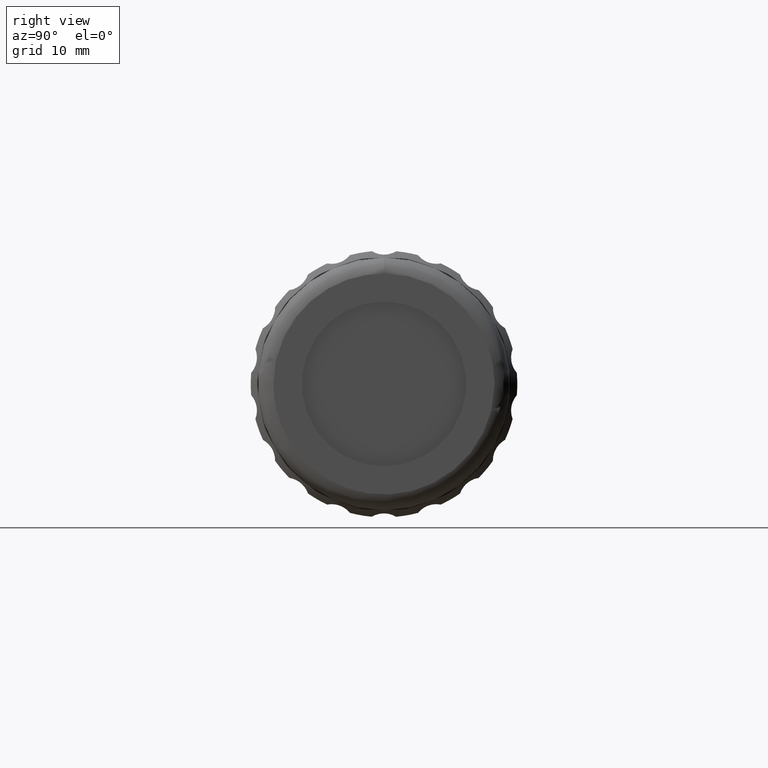
[diagram: clean part render]
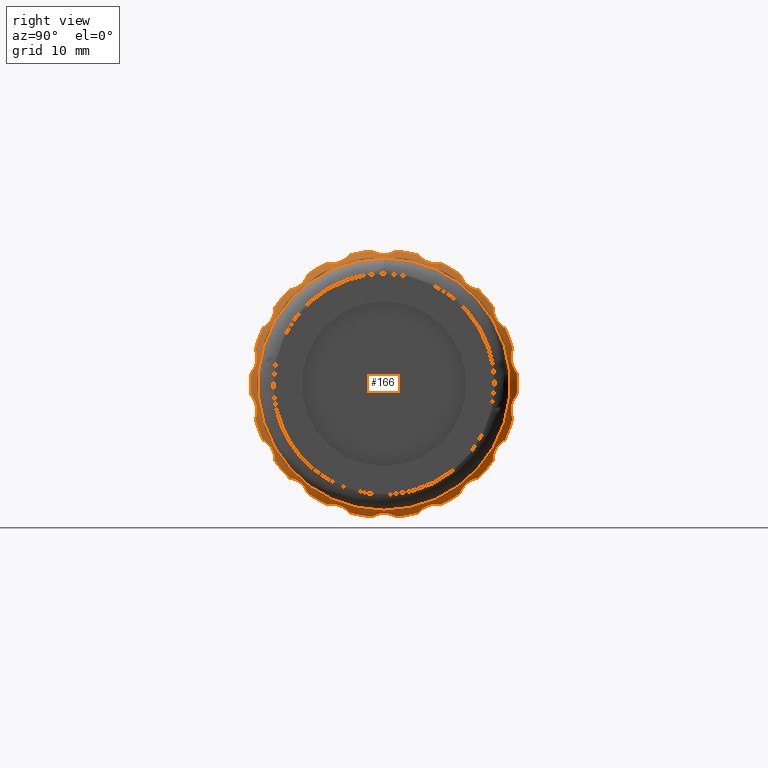
[diagram: same view with one face highlighted and labeled with its STEP entity id]
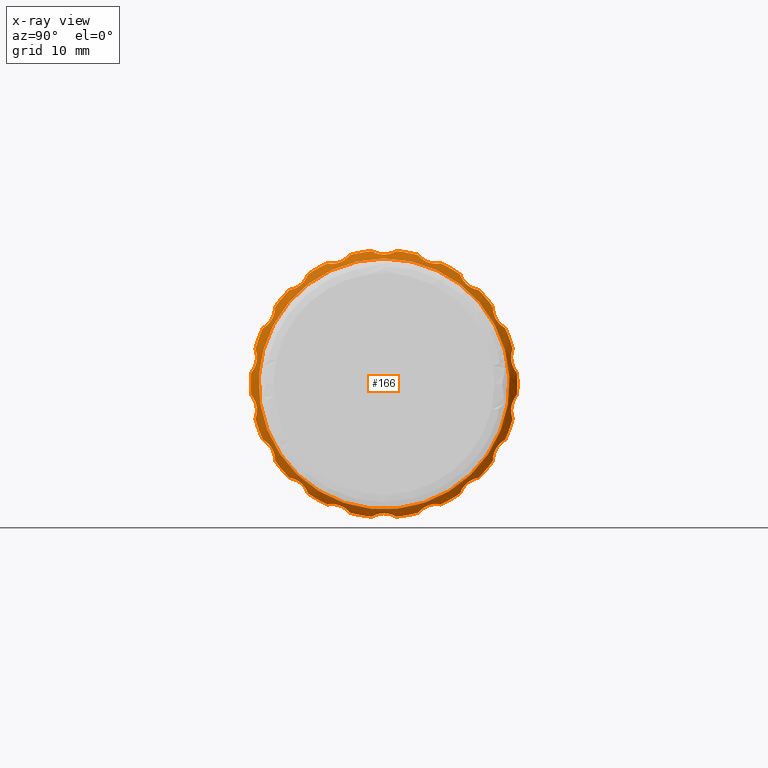
[diagram: x-ray of the same camera — body ghosted, the highlighted face saturated]
A machine part, right view. The second image highlights one B-rep face of the part: STEP entity #166.
The next image is the same camera in x-ray: the body ghosted, the highlighted face saturated — about 11% of this face is hidden behind the body in this view.
In plain terms, the highlighted conical surface has half-angle 45 deg.
Its self-contained STEP definition (entity closure, byte-faithful):
#9 = CARTESIAN_POINT ( 'NONE',  ( 32.44685803487879383, 61.45570754086768517, -7.125210880294358340 ) ) ;
#12 = CARTESIAN_POINT ( 'NONE',  ( 32.44685803487877962, 29.61726367720591568, 4.463034991433923793 ) ) ;
#18 = CARTESIAN_POINT ( 'NONE',  ( 32.59371544402085163, 50.51385775461107386, -16.24445744886877918 ) ) ;
#21 = AXIS2_PLACEMENT_3D ( 'NONE', #2043, #247, #915 ) ;
#22 = CARTESIAN_POINT ( 'NONE',  ( 32.85210940846928196, 60.02841235131358388, -8.899086528648503247 ) ) ;
#27 = CARTESIAN_POINT ( 'NONE',  ( 32.71993598786254864, 59.93088999195953903, 9.293558664531927249 ) ) ;
#28 = VERTEX_POINT ( 'NONE', #556 ) ;
#40 = AXIS2_PLACEMENT_3D ( 'NONE', #1572, #1765, #341 ) ;
#44 = CARTESIAN_POINT ( 'NONE',  ( 32.85273454226017975, 62.47058842444242543, -2.188910012077419420 ) ) ;
#45 = CARTESIAN_POINT ( 'NONE',  ( 32.93404516599888865, 35.18529463847772121, -12.46115531925905806 ) ) ;
#51 = CARTESIAN_POINT ( 'NONE',  ( 32.44685803487877251, 62.96184413496547450, 1.416514203673303385 ) ) ;
#55 = DIRECTION ( 'NONE',  ( 1.000000000000000000, -0.000000000000000000, -0.000000000000000000 ) ) ;
#58 = CIRCLE ( 'NONE', #597, 17.00000000000001421 ) ;
#63 = CARTESIAN_POINT ( 'NONE',  ( 32.59371544402078058, 62.79881279935864313, 1.603818139432604095 ) ) ;
#67 = DIRECTION ( 'NONE',  ( 1.000000000000000000, -0.000000000000000000, -0.000000000000000000 ) ) ;
#73 = EDGE_CURVE ( 'NONE', #1799, #1737, #409, .T. ) ;
#82 = CARTESIAN_POINT ( 'NONE',  ( 32.85273454226017975, 62.22720588179112156, 3.569201001427911191 ) ) ;
#83 = CARTESIAN_POINT ( 'NONE',  ( 32.44685803487880094, 46.02096199999999726, 0.000000000000000000 ) ) ;
#87 = CARTESIAN_POINT ( 'NONE',  ( 32.93501117040976567, 29.81087088656429884, -3.145384777659983033 ) ) ;
#88 = CARTESIAN_POINT ( 'NONE',  ( 32.71832649179927444, 39.27997936338324791, -15.31240733331347137 ) ) ;
#90 = DIRECTION ( 'NONE',  ( -1.000000000000000000, 0.000000000000000000, 2.040851148208006519E-16 ) ) ;
#95 = CARTESIAN_POINT ( 'NONE',  ( 32.44685803487879383, 55.71814035268526766, -13.96297718956138922 ) ) ;
#98 = CARTESIAN_POINT ( 'NONE',  ( 32.71832649179926733, 36.13051957456375618, 13.49406587643664324 ) ) ;
#104 = CARTESIAN_POINT ( 'NONE',  ( 32.44685803487880094, 32.13297559991000441, -9.804276299192871136 ) ) ;
#107 = CARTESIAN_POINT ( 'NONE',  ( 32.44685803487878673, 55.71814035268528187, 13.96297718956140166 ) ) ;
#113 = CARTESIAN_POINT ( 'NONE',  ( 32.93501117040977988, 56.84999067884827895, -12.46565831306566352 ) ) ;
#117 = CARTESIAN_POINT ( 'NONE',  ( 32.44685803487879383, 36.32378364731472686, -13.96297718956140699 ) ) ;
#119 = CARTESIAN_POINT ( 'NONE',  ( 32.85210940846934591, 46.72407182862872332, 16.58035111081103352 ) ) ;
#120 = FACE_OUTER_BOUND ( 'NONE', #1086, .T. ) ;
#125 = DIRECTION ( 'NONE',  ( 0.000000000000000000, 1.000000000000000000, 1.065814103640150437E-14 ) ) ;
#126 = CARTESIAN_POINT ( 'NONE',  ( 32.94700126034476284, 56.51882825756361228, 12.73030636577400720 ) ) ;
#132 = ORIENTED_EDGE ( 'NONE', *, *, #1691, .T. ) ;
#133 = VERTEX_POINT ( 'NONE', #1578 ) ;
#138 = B_SPLINE_CURVE_WITH_KNOTS ( 'NONE', 3,
 ( #173, #494, #148, #1757, #331, #2076, #507, #619, #1146, #663, #1158, #296, #1778, #963 ),
 .UNSPECIFIED., .F., .F.,
 ( 4, 2, 2, 2, 2, 2, 4 ),
 ( 1.699674944388147786E-17, 0.0008570537395406005064, 0.001285580609310882491, 0.001714107479081164800, 0.002142634348851446893, 0.002571161218621729420, 0.003428214958162306616 ),
 .UNSPECIFIED. ) ;
#140 = VERTEX_POINT ( 'NONE', #1590 ) ;
#143 = CARTESIAN_POINT ( 'NONE',  ( 32.71993598786259838, 41.33912331703049858, -16.06040833662843070 ) ) ;
#148 = CARTESIAN_POINT ( 'NONE',  ( 32.71832649179925312, 44.92366211032619816, -16.69450802511422438 ) ) ;
#149 = ORIENTED_EDGE ( 'NONE', *, *, #762, .T. ) ;
#150 = CARTESIAN_POINT ( 'NONE',  ( 32.93501117040983672, 31.86424395090698525, -8.499872551038858859 ) ) ;
#151 = DIRECTION ( 'NONE',  ( 0.000000000000000000, 1.000000000000000000, -3.552713678800500929E-15 ) ) ;
#153 = CARTESIAN_POINT ( 'NONE',  ( 32.44685803487878673, 38.77725821771978332, 15.37949139323467307 ) ) ;
#154 = ORIENTED_EDGE ( 'NONE', *, *, #1845, .T. ) ;
#164 = CARTESIAN_POINT ( 'NONE',  ( 32.85273454226020107, 35.90049711072168748, -13.15133936029217665 ) ) ;
#166 = ADVANCED_FACE ( 'NONE', ( #120, #1548 ), #973, .T. ) ;
#173 = CARTESIAN_POINT ( 'NONE',  ( 32.44685803487877251, 44.47420285922230221, -16.92948717948720727 ) ) ;
#175 = CARTESIAN_POINT ( 'NONE',  ( 32.44685803487878673, 33.95401115804229875, -11.97450196783888821 ) ) ;
#184 = CARTESIAN_POINT ( 'NONE',  ( 32.44685803487877962, 62.42466032279407528, -4.463034991433911358 ) ) ;
#190 = CARTESIAN_POINT ( 'NONE',  ( 32.71832649179925312, 61.02747999826900127, 7.396964432529774314 ) ) ;
#196 = CARTESIAN_POINT ( 'NONE',  ( 32.94700126034472731, 60.38080175225200463, -8.127785578975545988 ) ) ;
#198 = CARTESIAN_POINT ( 'NONE',  ( 32.44685803487877251, 29.08007986503451647, -1.416514203673299832 ) ) ;
#200 = VERTEX_POINT ( 'NONE', #2038 ) ;
#202 = CARTESIAN_POINT ( 'NONE',  ( 32.44685803487877962, 33.95401115804232006, 11.97450196783887932 ) ) ;
#203 = EDGE_CURVE ( 'NONE', #1030, #1658, #1355, .T. ) ;
#204 = CARTESIAN_POINT ( 'NONE',  ( 32.44685803487879383, 47.56772114077768521, 16.92948717948718240 ) ) ;
#210 = CARTESIAN_POINT ( 'NONE',  ( 32.71832649179923180, 62.65238706205303032, 1.818341456876850781 ) ) ;
#213 = ORIENTED_EDGE ( 'NONE', *, *, #229, .T. ) ;
#223 = ORIENTED_EDGE ( 'NONE', *, *, #1145, .T. ) ;
#226 = DIRECTION ( 'NONE',  ( 1.000000000000000000, -0.000000000000000000, -0.000000000000000000 ) ) ;
#229 = EDGE_CURVE ( 'NONE', #684, #958, #1998, .T. ) ;
#237 = CARTESIAN_POINT ( 'NONE',  ( 32.71832649179921759, 29.38953693794697131, -1.818341456876848783 ) ) ;
#244 = DIRECTION ( 'NONE',  ( 0.000000000000000000, 0.000000000000000000, 1.000000000000000000 ) ) ;
#247 = DIRECTION ( 'NONE',  ( 1.000000000000000000, -0.000000000000000000, -0.000000000000000000 ) ) ;
#250 = CARTESIAN_POINT ( 'NONE',  ( 32.94671223884984101, 35.52685220674476341, 12.73377765964755071 ) ) ;
#256 = CARTESIAN_POINT ( 'NONE',  ( 32.44685803487880804, 29.61726367720594766, -4.463034991433898035 ) ) ;
#257 = CARTESIAN_POINT ( 'NONE',  ( 32.44685803487879383, 53.26466578228019699, 15.37949139323468017 ) ) ;
#260 = DIRECTION ( 'NONE',  ( 0.000000000000000000, 1.000000000000000000, 6.217248937900876626E-15 ) ) ;
#261 = CIRCLE ( 'NONE', #812, 17.00000000000000000 ) ;
#262 = B_SPLINE_CURVE_WITH_KNOTS ( 'NONE', 3,
 ( #175, #830, #690, #1669, #1314, #45, #1351, #356, #1817, #1997, #164, #820, #1969, #1459 ),
 .UNSPECIFIED., .F., .F.,
 ( 4, 2, 2, 2, 2, 2, 4 ),
 ( 1.636534854170084423E-17, 0.0008570537395405636435, 0.001285580609310837171, 0.001714107479081110807, 0.002142634348851384877, 0.002571161218621658296, 0.003428214958162212507 ),
 .UNSPECIFIED. ) ;
#266 = DIRECTION ( 'NONE',  ( 1.000000000000000000, -0.000000000000000000, -0.000000000000000000 ) ) ;
#268 = CARTESIAN_POINT ( 'NONE',  ( 32.71832649179926022, 47.11826188967381768, 16.69450802511423149 ) ) ;
#271 = ORIENTED_EDGE ( 'NONE', *, *, #1607, .T. ) ;
#273 = EDGE_LOOP ( 'NONE', ( #1616 ) ) ;
#280 = CARTESIAN_POINT ( 'NONE',  ( 32.88671825240743374, 46.58915913714510282, 16.55096588861032814 ) ) ;
#282 = CARTESIAN_POINT ( 'NONE',  ( 32.93404516599894549, 40.10073146738320560, -15.41567220399188543 ) ) ;
#285 = CARTESIAN_POINT ( 'NONE',  ( 32.44685803487877962, 58.08791284195767446, -11.97450196783888110 ) ) ;
#286 = CARTESIAN_POINT ( 'NONE',  ( 32.44685803487881515, 46.02096199999999726, 0.000000000000000000 ) ) ;
#290 = EDGE_CURVE ( 'NONE', #28, #1155, #58, .T. ) ;
#291 = CARTESIAN_POINT ( 'NONE',  ( 32.88806413580810073, 39.83200033124971640, 15.35935614810683880 ) ) ;
#296 = CARTESIAN_POINT ( 'NONE',  ( 32.71993598786257706, 47.11445589906591636, -16.69313033811515012 ) ) ;
#315 = CARTESIAN_POINT ( 'NONE',  ( 32.85273454226022949, 52.35012353516404460, -15.34024937236954855 ) ) ;
#317 = CARTESIAN_POINT ( 'NONE',  ( 32.59397570363891816, 55.79897765731979575, 13.72771975950780821 ) ) ;
#319 = CARTESIAN_POINT ( 'NONE',  ( 32.44685803487880804, 30.58621645913232001, -7.125210880294336135 ) ) ;
#331 = CARTESIAN_POINT ( 'NONE',  ( 32.88671825240744084, 45.45276486285489881, -16.55096588861032814 ) ) ;
#333 = DIRECTION ( 'NONE',  ( 1.000000000000000000, -0.000000000000000000, -0.000000000000000000 ) ) ;
#337 = CARTESIAN_POINT ( 'NONE',  ( 32.93501117040975146, 60.17768004909310520, 8.499872551038848201 ) ) ;
#341 = DIRECTION ( 'NONE',  ( 0.000000000000000000, 1.000000000000000000, -1.154631945610162960E-14 ) ) ;
#345 = ORIENTED_EDGE ( 'NONE', *, *, #1541, .T. ) ;
#347 = CARTESIAN_POINT ( 'NONE',  ( 32.85210940846931038, 29.81459741884976111, 3.571575765922793355 ) ) ;
#349 = CARTESIAN_POINT ( 'NONE',  ( 32.71832649179923180, 32.11174389140475682, 9.297543592584467831 ) ) ;
#354 = CARTESIAN_POINT ( 'NONE',  ( 32.88671825240739821, 62.22181512952325022, -3.433610011084526459 ) ) ;
#356 = CARTESIAN_POINT ( 'NONE',  ( 32.94700126034473442, 35.52309574243637513, -12.73030636577401431 ) ) ;
#359 = CARTESIAN_POINT ( 'NONE',  ( 32.44685803487879383, 59.90894840009004696, 9.804276299192796529 ) ) ;
#361 = VERTEX_POINT ( 'NONE', #198 ) ;
#365 = CARTESIAN_POINT ( 'NONE',  ( 32.44685803487880094, 32.13297559991000441, -9.804276299192871136 ) ) ;
#369 = B_SPLINE_CURVE_WITH_KNOTS ( 'NONE', 3,
 ( #1988, #977, #1482, #22, #1002, #1338, #1182, #196, #1326, #1804, #1304, #520, #1148, #1025 ),
 .UNSPECIFIED., .F., .F.,
 ( 4, 2, 2, 2, 2, 2, 4 ),
 ( 2.194270917860438266E-17, 0.0008570537395405623425, 0.001285580609310835003, 0.001714107479081107555, 0.002142634348851380106, 0.002571161218621652658, 0.003428214958162185619 ),
 .UNSPECIFIED. ) ;
#372 = CARTESIAN_POINT ( 'NONE',  ( 32.44685803487879383, 30.58621645913232356, 7.125210880294359228 ) ) ;
#377 = CARTESIAN_POINT ( 'NONE',  ( 32.44685803487877251, 62.96184413496547450, -1.416514203673302941 ) ) ;
#382 = CARTESIAN_POINT ( 'NONE',  ( 32.88806413580808652, 34.95203119838304673, 12.31632407541566465 ) ) ;
#383 = CARTESIAN_POINT ( 'NONE',  ( 32.59397570363886132, 62.33536472968091147, 4.230856126619375601 ) ) ;
#391 = CARTESIAN_POINT ( 'NONE',  ( 32.59371544402083742, 36.24308934852178510, 13.72813594343332078 ) ) ;
#393 = ORIENTED_EDGE ( 'NONE', *, *, #1915, .T. ) ;
#398 = CIRCLE ( 'NONE', #1928, 17.00000000000000000 ) ;
#409 = B_SPLINE_CURVE_WITH_KNOTS ( 'NONE', 3,
 ( #51, #63, #210, #715, #2004, #1357, #1069, #1538, #536, #1993, #82, #1832, #383, #1714 ),
 .UNSPECIFIED., .F., .F.,
 ( 4, 2, 2, 2, 2, 2, 4 ),
 ( 3.903127820947815962E-18, 0.0008570537395405356711, 0.001285580609310801392, 0.001714107479081067439, 0.002142634348851333269, 0.002571161218621598882, 0.003428214958162131842 ),
 .UNSPECIFIED. ) ;
#411 = CARTESIAN_POINT ( 'NONE',  ( 32.44685803487876541, 41.68421451916363196, 16.43753695927285818 ) ) ;
#414 = CARTESIAN_POINT ( 'NONE',  ( 32.94700126034476284, 35.30699293778219783, 12.54897458209229022 ) ) ;
#417 = DIRECTION ( 'NONE',  ( 0.000000000000000000, 0.000000000000000000, 1.000000000000000000 ) ) ;
#420 = CARTESIAN_POINT ( 'NONE',  ( 32.44685803487879383, 30.58621645913232356, 7.125210880294359228 ) ) ;
#421 = CARTESIAN_POINT ( 'NONE',  ( 32.88671825240745505, 52.21565638232765849, 15.35848564612278899 ) ) ;
#428 = CARTESIAN_POINT ( 'NONE',  ( 32.94671223884982680, 56.51507179325524532, -12.73377765964754893 ) ) ;
#429 = DIRECTION ( 'NONE',  ( 0.000000000000000000, 1.000000000000000000, 0.000000000000000000 ) ) ;
#434 = DIRECTION ( 'NONE',  ( 0.000000000000000000, 1.000000000000000000, -7.105427357601001859E-15 ) ) ;
#435 = AXIS2_PLACEMENT_3D ( 'NONE', #561, #1996, #1209 ) ;
#443 = CARTESIAN_POINT ( 'NONE',  ( 32.93404516599894549, 31.57679921079044405, -8.003639195957664043 ) ) ;
#445 = CARTESIAN_POINT ( 'NONE',  ( 32.71993598786257706, 39.28402702137709923, 15.31241445645988897 ) ) ;
#446 = B_SPLINE_CURVE_WITH_KNOTS ( 'NONE', 3,
 ( #184, #688, #1170, #1814, #354, #1011, #1502, #1657, #1336, #1986, #44, #540, #1837, #377 ),
 .UNSPECIFIED., .F., .F.,
 ( 4, 2, 2, 2, 2, 2, 4 ),
 ( 6.071532165918824830E-18, 0.0008570537395405441279, 0.001285580609310812668, 0.001714107479081081534, 0.002142634348851350182, 0.002571161218621618831, 0.003428214958162156129 ),
 .UNSPECIFIED. ) ;
#448 = CARTESIAN_POINT ( 'NONE',  ( 32.88806413580807941, 57.08989280161696911, -12.31632407541566110 ) ) ;
#455 = CARTESIAN_POINT ( 'NONE',  ( 32.93404516599889575, 40.64711861377920599, 15.61454086166572175 ) ) ;
#461 = CARTESIAN_POINT ( 'NONE',  ( 32.44685803487875120, 59.90894840009008959, -9.804276299192858701 ) ) ;
#465 = CARTESIAN_POINT ( 'NONE',  ( 32.88671825240743374, 40.89412893152615425, 15.74715537869002624 ) ) ;
#488 = CARTESIAN_POINT ( 'NONE',  ( 32.85210940846931038, 32.01351164868641774, 8.899086528648499694 ) ) ;
#492 = ORIENTED_EDGE ( 'NONE', *, *, #1944, .T. ) ;
#494 = CARTESIAN_POINT ( 'NONE',  ( 32.59371544402080190, 44.68697132165852537, -16.80145764331209435 ) ) ;
#500 = EDGE_CURVE ( 'NONE', #1178, #970, #767, .T. ) ;
#507 = CARTESIAN_POINT ( 'NONE',  ( 32.94671223884985523, 45.87480198847892865, -16.50012336588022066 ) ) ;
#508 = VERTEX_POINT ( 'NONE', #1474 ) ;
#512 = CARTESIAN_POINT ( 'NONE',  ( 32.94700126034472021, 60.23975066403164647, 8.372093230236089312 ) ) ;
#518 = CARTESIAN_POINT ( 'NONE',  ( 32.44685803487878673, 46.02096199999999726, 0.000000000000000000 ) ) ;
#519 = ORIENTED_EDGE ( 'NONE', *, *, #1536, .T. ) ;
#520 = CARTESIAN_POINT ( 'NONE',  ( 32.71993598786254154, 61.02438389102538707, -7.399571673583226428 ) ) ;
#521 = CARTESIAN_POINT ( 'NONE',  ( 32.93404516599887444, 29.81145125225690151, 3.153385542406650810 ) ) ;
#522 = EDGE_CURVE ( 'NONE', #958, #1634, #1462, .T. ) ;
#529 = DIRECTION ( 'NONE',  ( 0.000000000000000000, 1.000000000000000000, 1.776356839400250465E-15 ) ) ;
#536 = CARTESIAN_POINT ( 'NONE',  ( 32.93501117040976567, 62.23105311343569923, 3.145384777659983033 ) ) ;
#538 = CIRCLE ( 'NONE', #1724, 16.99999999999998579 ) ;
#539 = CARTESIAN_POINT ( 'NONE',  ( 32.44685803487877962, 29.61726367720591568, 4.463034991433923793 ) ) ;
#540 = CARTESIAN_POINT ( 'NONE',  ( 32.71993598786254154, 62.65036940188181802, -1.821850393098604748 ) ) ;
#542 = CIRCLE ( 'NONE', #435, 16.99999999999997513 ) ;
#544 = CARTESIAN_POINT ( 'NONE',  ( 32.44685803487879383, 41.68421451916365328, -16.43753695927281200 ) ) ;
#556 = CARTESIAN_POINT ( 'NONE',  ( 32.44685803487877962, 58.08791284195767446, -11.97450196783888110 ) ) ;
#561 = CARTESIAN_POINT ( 'NONE',  ( 32.44685803487882225, 46.02096199999999726, 0.000000000000000000 ) ) ;
#563 = CARTESIAN_POINT ( 'NONE',  ( 32.93501117040978698, 35.19193332115172979, 12.46565831306566530 ) ) ;
#577 = B_SPLINE_CURVE_WITH_KNOTS ( 'NONE', 3,
 ( #1442, #18, #2106, #1300, #1953, #1132, #2096, #1110, #1595, #641, #315, #1311, #1635, #1964 ),
 .UNSPECIFIED., .F., .F.,
 ( 4, 2, 2, 2, 2, 2, 4 ),
 ( 1.201851678989727231E-17, 0.0008570537395405912907, 0.001285580609310872733, 0.001714107479081154392, 0.002142634348851436485, 0.002571161218621717710, 0.003428214958162281029 ),
 .UNSPECIFIED. ) ;
#578 = CARTESIAN_POINT ( 'NONE',  ( 32.44685803487878673, 46.02096199999999726, 0.000000000000000000 ) ) ;
#589 = CARTESIAN_POINT ( 'NONE',  ( 32.85210940846936722, 52.35248318087391795, 15.33995586450727089 ) ) ;
#590 = CARTESIAN_POINT ( 'NONE',  ( 32.59371544402081611, 47.35495267834149047, 16.80145764331209435 ) ) ;
#594 = CARTESIAN_POINT ( 'NONE',  ( 32.85210940846931749, 29.57040993796760020, -2.186719745017569050 ) ) ;
#595 = CARTESIAN_POINT ( 'NONE',  ( 32.44685803487877962, 38.77725821771979042, -15.37949139323468373 ) ) ;
#597 = AXIS2_PLACEMENT_3D ( 'NONE', #967, #1328, #151 ) ;
#599 = CARTESIAN_POINT ( 'NONE',  ( 32.93501117040980120, 45.73821546641686098, 16.51001374024769675 ) ) ;
#602 = CARTESIAN_POINT ( 'NONE',  ( 32.94700126034476995, 40.24512641806274615, 15.45657204746855840 ) ) ;
#606 = CARTESIAN_POINT ( 'NONE',  ( 32.85273454226017975, 29.81471811820888362, -3.569201001427910303 ) ) ;
#607 = CARTESIAN_POINT ( 'NONE',  ( 32.94671223884986233, 51.80168204276987609, 15.45505450088584176 ) ) ;
#614 = CARTESIAN_POINT ( 'NONE',  ( 32.59371544402079479, 41.52806624538890645, 16.24445744886884668 ) ) ;
#619 = CARTESIAN_POINT ( 'NONE',  ( 32.94700126034476284, 46.16201308822036253, -16.49987880921160865 ) ) ;
#620 = VERTEX_POINT ( 'NONE', #544 ) ;
#621 = CARTESIAN_POINT ( 'NONE',  ( 32.94700126034479837, 31.80217333596844398, -8.372093230236085759 ) ) ;
#636 = CARTESIAN_POINT ( 'NONE',  ( 32.59397570363890395, 39.02141578089251084, 15.33186983759482658 ) ) ;
#641 = CARTESIAN_POINT ( 'NONE',  ( 32.88806413580810784, 52.20992366875027102, -15.35935614810682814 ) ) ;
#649 = VERTEX_POINT ( 'NONE', #1858 ) ;
#654 = CARTESIAN_POINT ( 'NONE',  ( 32.44685803487880804, 46.02096199999999726, 0.000000000000000000 ) ) ;
#655 = EDGE_CURVE ( 'NONE', #361, #726, #669, .T. ) ;
#659 = CARTESIAN_POINT ( 'NONE',  ( 32.93404516599888865, 31.86752573897096852, 8.507192313874586631 ) ) ;
#660 = VERTEX_POINT ( 'NONE', #95 ) ;
#663 = CARTESIAN_POINT ( 'NONE',  ( 32.88806413580809362, 46.58347441928598442, -16.54982318938170494 ) ) ;
#669 = B_SPLINE_CURVE_WITH_KNOTS ( 'NONE', 3,
 ( #1055, #1702, #237, #594, #1554, #1719, #2075, #2062, #87, #1544, #606, #1387, #1255, #920 ),
 .UNSPECIFIED., .F., .F.,
 ( 4, 2, 2, 2, 2, 2, 4 ),
 ( 9.986437839578378192E-18, 0.0008570537395405388153, 0.001285580609310806380, 0.001714107479081073727, 0.002142634348851341075, 0.002571161218621608856, 0.003428214958162145286 ),
 .UNSPECIFIED. ) ;
#670 = CARTESIAN_POINT ( 'NONE',  ( 32.94700126034473442, 31.66112224774798278, 8.127785578975540659 ) ) ;
#674 = CARTESIAN_POINT ( 'NONE',  ( 32.44685803487877962, 38.77725821771979042, -15.37949139323468373 ) ) ;
#677 = ORIENTED_EDGE ( 'NONE', *, *, #1340, .T. ) ;
#679 = CARTESIAN_POINT ( 'NONE',  ( 32.71832649179923891, 29.77062519033893651, 3.979600334337169087 ) ) ;
#684 = VERTEX_POINT ( 'NONE', #420 ) ;
#685 = ORIENTED_EDGE ( 'NONE', *, *, #1319, .T. ) ;
#688 = CARTESIAN_POINT ( 'NONE',  ( 32.59371544402080190, 62.33552269872132712, -4.231266864385903936 ) ) ;
#690 = CARTESIAN_POINT ( 'NONE',  ( 32.71832649179923891, 34.44935860872440969, -12.08340433005123593 ) ) ;
#695 = ORIENTED_EDGE ( 'NONE', *, *, #901, .T. ) ;
#703 = EDGE_CURVE ( 'NONE', #660, #28, #921, .T. ) ;
#704 = CARTESIAN_POINT ( 'NONE',  ( 32.44685803487876541, 32.13297559990991914, 9.804276299192837385 ) ) ;
#715 = CARTESIAN_POINT ( 'NONE',  ( 32.85210940846929617, 62.47151406203238366, 2.186719745017569494 ) ) ;
#716 = EDGE_CURVE ( 'NONE', #1189, #660, #1773, .T. ) ;
#717 = AXIS2_PLACEMENT_3D ( 'NONE', #286, #943, #429 ) ;
#726 = VERTEX_POINT ( 'NONE', #256 ) ;
#734 = DIRECTION ( 'NONE',  ( -1.000000000000000000, 0.000000000000000000, 0.000000000000000000 ) ) ;
#735 = CARTESIAN_POINT ( 'NONE',  ( 32.44685803487877962, 58.08791284195770288, 11.97450196783888643 ) ) ;
#736 = AXIS2_PLACEMENT_3D ( 'NONE', #1383, #1859, #1047 ) ;
#747 = CARTESIAN_POINT ( 'NONE',  ( 32.59371544402082321, 55.79883465147822363, -13.72813594343331189 ) ) ;
#752 = VERTEX_POINT ( 'NONE', #930 ) ;
#758 = CARTESIAN_POINT ( 'NONE',  ( 32.59397570363893237, 50.51413447943097879, 16.24411527478354955 ) ) ;
#762 = EDGE_CURVE ( 'NONE', #620, #649, #962, .T. ) ;
#763 = CARTESIAN_POINT ( 'NONE',  ( 32.85210940846933170, 41.01085505425493238, 15.82091131322985866 ) ) ;
#767 = CIRCLE ( 'NONE', #1618, 16.99999999999998579 ) ;
#769 = VERTEX_POINT ( 'NONE', #674 ) ;
#771 = AXIS2_PLACEMENT_3D ( 'NONE', #1104, #90, #1076 ) ;
#773 = CARTESIAN_POINT ( 'NONE',  ( 32.94671223884984101, 46.16712201152108008, 16.50012336588021356 ) ) ;
#778 = CARTESIAN_POINT ( 'NONE',  ( 32.88671825240743374, 56.22445354203716761, -13.04400552683793357 ) ) ;
#784 = CIRCLE ( 'NONE', #1599, 15.99999999999999645 ) ;
#787 = ORIENTED_EDGE ( 'NONE', *, *, #1517, .T. ) ;
#792 = CARTESIAN_POINT ( 'NONE',  ( 32.71832649179925312, 57.59256539127557062, 12.08340433005123948 ) ) ;
#802 = CARTESIAN_POINT ( 'NONE',  ( 32.85210940846933170, 57.21721963540510814, 12.24933554730703378 ) ) ;
#804 = CARTESIAN_POINT ( 'NONE',  ( 32.71832649179928865, 31.01444400173102878, -7.396964432529726352 ) ) ;
#806 = B_SPLINE_CURVE_WITH_KNOTS ( 'NONE', 3,
 ( #1921, #1802, #792, #802, #1636, #828, #1443, #126, #952, #1423, #2098, #2107, #317, #2085 ),
 .UNSPECIFIED., .F., .F.,
 ( 4, 2, 2, 2, 2, 2, 4 ),
 ( 2.255140518769849223E-17, 0.0008570537395405681972, 0.001285580609310841074, 0.001714107479081113843, 0.002142634348851386612, 0.002571161218621659597, 0.003428214958162220313 ),
 .UNSPECIFIED. ) ;
#807 = AXIS2_PLACEMENT_3D ( 'NONE', #1751, #2079, #260 ) ;
#809 = CIRCLE ( 'NONE', #21, 16.99999999999998579 ) ;
#811 = ORIENTED_EDGE ( 'NONE', *, *, #655, .T. ) ;
#812 = AXIS2_PLACEMENT_3D ( 'NONE', #1470, #975, #1292 ) ;
#814 = EDGE_CURVE ( 'NONE', #1737, #140, #1038, .T. ) ;
#820 = CARTESIAN_POINT ( 'NONE',  ( 32.71993598786256996, 36.12848957674106742, -13.49056406336132952 ) ) ;
#821 = CARTESIAN_POINT ( 'NONE',  ( 32.71993598786254154, 29.39155459811817650, 1.821850393098595644 ) ) ;
#826 = DIRECTION ( 'NONE',  ( 1.000000000000000000, -0.000000000000000000, -0.000000000000000000 ) ) ;
#828 = CARTESIAN_POINT ( 'NONE',  ( 32.93404516599890286, 56.85662936152226621, 12.46115531925905273 ) ) ;
#830 = CARTESIAN_POINT ( 'NONE',  ( 32.59371544402080190, 34.19929705588980795, -12.01319058448289923 ) ) ;
#831 = CARTESIAN_POINT ( 'NONE',  ( 32.44685803487880094, 46.02096199999999726, 0.000000000000000000 ) ) ;
#838 = CARTESIAN_POINT ( 'NONE',  ( 32.44685803487879383, 44.47420285922232353, 16.92948717948717530 ) ) ;
#839 = VERTEX_POINT ( 'NONE', #974 ) ;
#841 = DIRECTION ( 'NONE',  ( 1.000000000000000000, -0.000000000000000000, -0.000000000000000000 ) ) ;
#854 = CARTESIAN_POINT ( 'NONE',  ( 32.88806413580805099, 60.07227310050246416, 8.762061639736737462 ) ) ;
#873 = VERTEX_POINT ( 'NONE', #904 ) ;
#895 = AXIS2_PLACEMENT_3D ( 'NONE', #1491, #226, #529 ) ;
#901 = EDGE_CURVE ( 'NONE', #752, #1189, #577, .T. ) ;
#904 = CARTESIAN_POINT ( 'NONE',  ( 33.44685803487879383, 46.02096199999999726, 15.99999999999999645 ) ) ;
#906 = CARTESIAN_POINT ( 'NONE',  ( 32.71993598786259838, 50.70280068296951725, 16.06040833662844491 ) ) ;
#912 = DIRECTION ( 'NONE',  ( 1.000000000000000000, -0.000000000000000000, -2.040851148208006519E-16 ) ) ;
#915 = DIRECTION ( 'NONE',  ( 0.000000000000000000, 1.000000000000000000, 0.000000000000000000 ) ) ;
#920 = CARTESIAN_POINT ( 'NONE',  ( 32.44685803487880804, 29.61726367720594766, -4.463034991433898035 ) ) ;
#921 = B_SPLINE_CURVE_WITH_KNOTS ( 'NONE', 3,
 ( #1228, #747, #941, #1561, #778, #2042, #428, #1099, #113, #448, #1874, #1746, #1710, #285 ),
 .UNSPECIFIED., .F., .F.,
 ( 4, 2, 2, 2, 2, 2, 4 ),
 ( 3.469446951953614189E-18, 0.0008570537395405488984, 0.001285580609310823510, 0.001714107479081098230, 0.002142634348851372734, 0.002571161218621647020, 0.003428214958162201231 ),
 .UNSPECIFIED. ) ;
#930 = CARTESIAN_POINT ( 'NONE',  ( 32.44685803487880804, 50.35770948083634835, -16.43753695927276226 ) ) ;
#938 = CARTESIAN_POINT ( 'NONE',  ( 32.94700126034479837, 40.51021575157182042, -15.55305667428728533 ) ) ;
#939 = ORIENTED_EDGE ( 'NONE', *, *, #1175, .T. ) ;
#941 = CARTESIAN_POINT ( 'NONE',  ( 32.71832649179927444, 55.91140442543625255, -13.49406587643664146 ) ) ;
#943 = DIRECTION ( 'NONE',  ( 1.000000000000000000, -0.000000000000000000, -0.000000000000000000 ) ) ;
#945 = CARTESIAN_POINT ( 'NONE',  ( 32.59397570363893237, 32.13747616120608797, -9.555558641669259501 ) ) ;
#947 = CARTESIAN_POINT ( 'NONE',  ( 32.44685803487876541, 41.68421451916363196, 16.43753695927285818 ) ) ;
#951 = DIRECTION ( 'NONE',  ( 0.000000000000000000, 1.000000000000000000, 0.000000000000000000 ) ) ;
#952 = CARTESIAN_POINT ( 'NONE',  ( 32.93501117040978698, 56.41679785712319273, 12.82915025000380460 ) ) ;
#954 = B_SPLINE_CURVE_WITH_KNOTS ( 'NONE', 3,
 ( #595, #1866, #88, #1246, #969, #282, #1430, #938, #1284, #2070, #1095, #143, #1580, #1407 ),
 .UNSPECIFIED., .F., .F.,
 ( 4, 2, 2, 2, 2, 2, 4 ),
 ( 1.561251128379126385E-17, 0.0008570537395405986632, 0.001285580609310886828, 0.001714107479081174992, 0.002142634348851465108, 0.002571161218621755007, 0.003428214958162318325 ),
 .UNSPECIFIED. ) ;
#957 = CARTESIAN_POINT ( 'NONE',  ( 32.44685803487879383, 59.90894840009004696, 9.804276299192796529 ) ) ;
#958 = VERTEX_POINT ( 'NONE', #539 ) ;
#962 = CIRCLE ( 'NONE', #40, 17.00000000000000000 ) ;
#963 = CARTESIAN_POINT ( 'NONE',  ( 32.44685803487877962, 47.56772114077767810, -16.92948717948717885 ) ) ;
#967 = CARTESIAN_POINT ( 'NONE',  ( 32.44685803487877251, 46.02096199999999726, 0.000000000000000000 ) ) ;
#969 = CARTESIAN_POINT ( 'NONE',  ( 32.88671825240746216, 39.82626761767232892, -15.35848564612279432 ) ) ;
#970 = VERTEX_POINT ( 'NONE', #1031 ) ;
#973 = CONICAL_SURFACE ( 'NONE', #771, 17.00000000000001421, 0.7853981633974447263 ) ;
#974 = CARTESIAN_POINT ( 'NONE',  ( 32.44685803487878673, 38.77725821771978332, 15.37949139323467307 ) ) ;
#975 = DIRECTION ( 'NONE',  ( 1.000000000000000000, -0.000000000000000000, -0.000000000000000000 ) ) ;
#977 = CARTESIAN_POINT ( 'NONE',  ( 32.59371544402077348, 59.90445580054581853, -9.555998637511386562 ) ) ;
#979 = CARTESIAN_POINT ( 'NONE',  ( 32.88671825240740532, 29.82010887047672298, 3.433610011084513136 ) ) ;
#983 = CARTESIAN_POINT ( 'NONE',  ( 32.93501117040977988, 31.58149741732376725, 8.010141189208871637 ) ) ;
#991 = DIRECTION ( 'NONE',  ( 0.000000000000000000, 1.000000000000000000, 0.000000000000000000 ) ) ;
#996 = CARTESIAN_POINT ( 'NONE',  ( 32.85273454226017975, 60.02911114830940420, 8.896813698364438139 ) ) ;
#999 = CARTESIAN_POINT ( 'NONE',  ( 32.44685803487882225, 46.02096199999999726, 0.000000000000000000 ) ) ;
#1001 = ORIENTED_EDGE ( 'NONE', *, *, #500, .T. ) ;
#1002 = CARTESIAN_POINT ( 'NONE',  ( 32.88671825240738400, 60.07042034813371600, -8.767556099430425576 ) ) ;
#1007 = CARTESIAN_POINT ( 'NONE',  ( 32.59397570363886842, 30.80386254956549053, 7.245672108642462028 ) ) ;
#1011 = CARTESIAN_POINT ( 'NONE',  ( 32.93404516599888154, 62.23047274774312143, -3.153385542406664577 ) ) ;
#1012 = VERTEX_POINT ( 'NONE', #1836 ) ;
#1014 = B_SPLINE_CURVE_WITH_KNOTS ( 'NONE', 3,
 ( #947, #614, #1744, #763, #465, #455, #1105, #602, #1752, #291, #1591, #445, #636, #153 ),
 .UNSPECIFIED., .F., .F.,
 ( 4, 2, 2, 2, 2, 2, 4 ),
 ( 1.430489624538199204E-17, 0.0008570537395405792560, 0.001285580609310864927, 0.001714107479081150706, 0.002142634348851436485, 0.002571161218621722047, 0.003428214958162300111 ),
 .UNSPECIFIED. ) ;
#1025 = CARTESIAN_POINT ( 'NONE',  ( 32.44685803487879383, 61.45570754086768517, -7.125210880294358340 ) ) ;
#1028 = CARTESIAN_POINT ( 'NONE',  ( 32.59371544402078769, 32.13746819945419020, 9.555998637511374127 ) ) ;
#1030 = VERTEX_POINT ( 'NONE', #202 ) ;
#1031 = CARTESIAN_POINT ( 'NONE',  ( 32.44685803487877962, 62.42466032279407528, -4.463034991433911358 ) ) ;
#1033 = CARTESIAN_POINT ( 'NONE',  ( 32.44685803487878673, 46.02096199999999726, 0.000000000000000000 ) ) ;
#1036 = B_SPLINE_CURVE_WITH_KNOTS ( 'NONE', 3,
 ( #319, #2078, #804, #1575, #1415, #443, #1270, #621, #150, #1437, #1563, #1739, #945, #104 ),
 .UNSPECIFIED., .F., .F.,
 ( 4, 2, 2, 2, 2, 2, 4 ),
 ( 8.673617379884035472E-19, 0.0008570537395405953022, 0.001285580609310886611, 0.001714107479081175859, 0.002142634348851465542, 0.002571161218621754573, 0.003428214958162343045 ),
 .UNSPECIFIED. ) ;
#1038 = CIRCLE ( 'NONE', #1679, 16.99999999999997513 ) ;
#1039 = CARTESIAN_POINT ( 'NONE',  ( 32.85210940846934591, 35.90193111884155996, 13.15323611948971916 ) ) ;
#1047 = DIRECTION ( 'NONE',  ( 0.000000000000000000, 0.000000000000000000, 1.000000000000000000 ) ) ;
#1055 = CARTESIAN_POINT ( 'NONE',  ( 32.44685803487877251, 29.08007986503451647, -1.416514203673299832 ) ) ;
#1068 = CARTESIAN_POINT ( 'NONE',  ( 32.85273454226021528, 34.82682132065500724, 12.25041840084325884 ) ) ;
#1069 = CARTESIAN_POINT ( 'NONE',  ( 32.94671223884980549, 62.29579183602519521, 2.721276841238303934 ) ) ;
#1071 = CARTESIAN_POINT ( 'NONE',  ( 33.44685803487879383, 46.02096199999999726, -2.040851148208057549E-16 ) ) ;
#1074 = CARTESIAN_POINT ( 'NONE',  ( 32.93404516599894549, 51.94119253261677471, 15.41567220399189075 ) ) ;
#1076 = DIRECTION ( 'NONE',  ( 0.000000000000000000, 0.000000000000000000, 1.000000000000000000 ) ) ;
#1078 = EDGE_CURVE ( 'NONE', #1799, #1789, #1342, .T. ) ;
#1082 = CIRCLE ( 'NONE', #895, 17.00000000000000000 ) ;
#1086 = EDGE_LOOP ( 'NONE', ( #1610, #811, #1492, #393, #1481, #1581, #492, #345, #149, #223, #677, #695, #1955, #1135, #1471, #1862, #1001, #1276, #1510, #1265, #1487, #1207, #787, #1655, #685, #519, #1334, #154, #1441, #271, #939, #1091, #2082, #132, #213, #1800 ) ) ;
#1091 = ORIENTED_EDGE ( 'NONE', *, *, #1740, .T. ) ;
#1095 = CARTESIAN_POINT ( 'NONE',  ( 32.85273454226025081, 41.00885879755396957, -15.81961940227117047 ) ) ;
#1099 = CARTESIAN_POINT ( 'NONE',  ( 32.94700126034475574, 56.73493106221781090, -12.54897458209228844 ) ) ;
#1103 = CARTESIAN_POINT ( 'NONE',  ( 32.88806413580809362, 45.45844958071401720, 16.54982318938169783 ) ) ;
#1104 = CARTESIAN_POINT ( 'NONE',  ( 32.44685803487877251, 46.02096199999999726, 0.000000000000000000 ) ) ;
#1105 = CARTESIAN_POINT ( 'NONE',  ( 32.94671223884984812, 40.51493292579076666, 15.55503383706371423 ) ) ;
#1110 = CARTESIAN_POINT ( 'NONE',  ( 32.94700126034477705, 51.79679758193721995, -15.45657204746853175 ) ) ;
#1132 = CARTESIAN_POINT ( 'NONE',  ( 32.93404516599894549, 51.39480538622076011, -15.61454086166568445 ) ) ;
#1133 = AXIS2_PLACEMENT_3D ( 'NONE', #578, #266, #125 ) ;
#1135 = ORIENTED_EDGE ( 'NONE', *, *, #703, .T. ) ;
#1137 = DIRECTION ( 'NONE',  ( 0.000000000000000000, 1.000000000000000000, -1.953992523340275511E-14 ) ) ;
#1140 = CARTESIAN_POINT ( 'NONE',  ( 32.71993598786255575, 31.01754010897460034, 7.399571673583222875 ) ) ;
#1145 = EDGE_CURVE ( 'NONE', #649, #133, #138, .T. ) ;
#1146 = CARTESIAN_POINT ( 'NONE',  ( 32.93501117040979409, 46.30370853358314776, -16.51001374024769675 ) ) ;
#1148 = CARTESIAN_POINT ( 'NONE',  ( 32.59397570363887553, 61.23806145043451465, -7.245672108642466469 ) ) ;
#1151 = AXIS2_PLACEMENT_3D ( 'NONE', #1888, #1251, #434 ) ;
#1155 = VERTEX_POINT ( 'NONE', #461 ) ;
#1158 = CARTESIAN_POINT ( 'NONE',  ( 32.85273454226022238, 46.72175410136635065, -16.57981987161947046 ) ) ;
#1161 = EDGE_CURVE ( 'NONE', #1409, #1822, #806, .T. ) ;
#1170 = CARTESIAN_POINT ( 'NONE',  ( 32.71832649179923180, 62.27129880966106157, -3.979600334337187739 ) ) ;
#1175 = EDGE_CURVE ( 'NONE', #839, #1762, #261, .T. ) ;
#1176 = CARTESIAN_POINT ( 'NONE',  ( 32.88671825240741242, 31.97150365186628918, 8.767556099430427352 ) ) ;
#1178 = VERTEX_POINT ( 'NONE', #9 ) ;
#1182 = CARTESIAN_POINT ( 'NONE',  ( 32.94671223884979838, 60.23740799466897045, -8.376639965934810306 ) ) ;
#1189 = VERTEX_POINT ( 'NONE', #1966 ) ;
#1207 = ORIENTED_EDGE ( 'NONE', *, *, #1700, .T. ) ;
#1209 = DIRECTION ( 'NONE',  ( 0.000000000000000000, 1.000000000000000000, 0.000000000000000000 ) ) ;
#1220 = CARTESIAN_POINT ( 'NONE',  ( 32.85273454226024370, 51.03306520244602495, 15.81961940227117758 ) ) ;
#1222 = CARTESIAN_POINT ( 'NONE',  ( 32.71993598786254864, 34.45315972681317618, 12.08479540418656484 ) ) ;
#1228 = CARTESIAN_POINT ( 'NONE',  ( 32.44685803487879383, 55.71814035268526766, -13.96297718956138922 ) ) ;
#1239 = CARTESIAN_POINT ( 'NONE',  ( 32.93404516599891707, 46.31168852818061055, 16.51083150983224357 ) ) ;
#1244 = CIRCLE ( 'NONE', #736, 17.00000000000000000 ) ;
#1246 = CARTESIAN_POINT ( 'NONE',  ( 32.85210940846936012, 39.68944081912606947, -15.33995586450726911 ) ) ;
#1249 = EDGE_CURVE ( 'NONE', #726, #508, #542, .T. ) ;
#1250 = CARTESIAN_POINT ( 'NONE',  ( 32.59397570363890395, 44.68734838835946022, 16.80123075031171354 ) ) ;
#1251 = DIRECTION ( 'NONE',  ( 1.000000000000000000, -0.000000000000000000, -0.000000000000000000 ) ) ;
#1253 = VERTEX_POINT ( 'NONE', #838 ) ;
#1255 = CARTESIAN_POINT ( 'NONE',  ( 32.59397570363888974, 29.70655927031907595, -4.230856126619375601 ) ) ;
#1256 = CARTESIAN_POINT ( 'NONE',  ( 32.94700126034480547, 51.53170824842818121, 15.55305667428728889 ) ) ;
#1258 = DIRECTION ( 'NONE',  ( 0.000000000000000000, 1.000000000000000000, 0.000000000000000000 ) ) ;
#1259 = AXIS2_PLACEMENT_3D ( 'NONE', #518, #67, #1856 ) ;
#1265 = ORIENTED_EDGE ( 'NONE', *, *, #73, .T. ) ;
#1270 = CARTESIAN_POINT ( 'NONE',  ( 32.94671223884989075, 31.65835599381003362, -8.123483399945421013 ) ) ;
#1276 = ORIENTED_EDGE ( 'NONE', *, *, #1331, .T. ) ;
#1277 = EDGE_CURVE ( 'NONE', #1253, #1488, #1082, .T. ) ;
#1284 = CARTESIAN_POINT ( 'NONE',  ( 32.93501117040981541, 40.63989956541264092, -15.61104309072564078 ) ) ;
#1287 = VERTEX_POINT ( 'NONE', #365 ) ;
#1292 = DIRECTION ( 'NONE',  ( 0.000000000000000000, 1.000000000000000000, 0.000000000000000000 ) ) ;
#1300 = CARTESIAN_POINT ( 'NONE',  ( 32.85210940846939565, 51.03106894574504793, -15.82091131322981070 ) ) ;
#1303 = VERTEX_POINT ( 'NONE', #204 ) ;
#1304 = CARTESIAN_POINT ( 'NONE',  ( 32.85273454226017265, 60.72990324967569364, -7.683006173255046534 ) ) ;
#1307 = CARTESIAN_POINT ( 'NONE',  ( 32.88806413580806520, 31.40713848021163557, 7.787761549644993231 ) ) ;
#1311 = CARTESIAN_POINT ( 'NONE',  ( 32.71993598786256285, 52.75789697862287397, -15.31241445645989252 ) ) ;
#1314 = CARTESIAN_POINT ( 'NONE',  ( 32.88671825240743374, 34.94694193895062284, -12.31354536760549223 ) ) ;
#1319 = EDGE_CURVE ( 'NONE', #1822, #1500, #1706, .T. ) ;
#1326 = CARTESIAN_POINT ( 'NONE',  ( 32.93501117040977277, 60.46042658267626280, -8.010141189208873413 ) ) ;
#1327 = CARTESIAN_POINT ( 'NONE',  ( 32.94700126034472021, 29.74726016049911692, 2.726265681694551635 ) ) ;
#1328 = DIRECTION ( 'NONE',  ( 1.000000000000000000, -0.000000000000000000, -0.000000000000000000 ) ) ;
#1329 = CARTESIAN_POINT ( 'NONE',  ( 32.88671825240740532, 60.63861748527881446, 7.783409789179931870 ) ) ;
#1330 = AXIS2_PLACEMENT_3D ( 'NONE', #1033, #55, #2023 ) ;
#1331 = EDGE_CURVE ( 'NONE', #970, #1789, #446, .T. ) ;
#1334 = ORIENTED_EDGE ( 'NONE', *, *, #2048, .T. ) ;
#1336 = CARTESIAN_POINT ( 'NONE',  ( 32.93501117040976567, 62.32924995403242008, -2.588482820839978160 ) ) ;
#1338 = CARTESIAN_POINT ( 'NONE',  ( 32.93404516599885312, 60.17439826102904021, -8.507192313874591960 ) ) ;
#1339 = CARTESIAN_POINT ( 'NONE',  ( 32.59371544402078058, 29.70640130127866385, 4.231266864385898607 ) ) ;
#1340 = EDGE_CURVE ( 'NONE', #133, #752, #2072, .T. ) ;
#1342 = CIRCLE ( 'NONE', #1434, 17.00000000000000000 ) ;
#1351 = CARTESIAN_POINT ( 'NONE',  ( 32.94671223884983391, 35.30292207748090760, -12.54587797077277322 ) ) ;
#1355 = CIRCLE ( 'NONE', #807, 17.00000000000001421 ) ;
#1357 = CARTESIAN_POINT ( 'NONE',  ( 32.93404516599888154, 62.33144101137909843, 2.580766064489510292 ) ) ;
#1374 = CARTESIAN_POINT ( 'NONE',  ( 32.44685803487879383, 36.32378364731472686, 13.96297718956139100 ) ) ;
#1383 = CARTESIAN_POINT ( 'NONE',  ( 32.44685803487880094, 46.02096199999999726, 0.000000000000000000 ) ) ;
#1387 = CARTESIAN_POINT ( 'NONE',  ( 32.71993598786256285, 29.77132104384358158, -3.975612932441852099 ) ) ;
#1390 = CARTESIAN_POINT ( 'NONE',  ( 32.59397570363888264, 34.19973174975009300, 12.01325914816415796 ) ) ;
#1396 = EDGE_CURVE ( 'NONE', #873, #873, #784, .T. ) ;
#1407 = CARTESIAN_POINT ( 'NONE',  ( 32.44685803487879383, 41.68421451916365328, -16.43753695927281200 ) ) ;
#1409 = VERTEX_POINT ( 'NONE', #735 ) ;
#1415 = CARTESIAN_POINT ( 'NONE',  ( 32.88671825240747637, 31.40330651472126533, -7.783409789179908778 ) ) ;
#1423 = CARTESIAN_POINT ( 'NONE',  ( 32.88806413580808652, 56.22807377565807485, 13.03947610223928599 ) ) ;
#1430 = CARTESIAN_POINT ( 'NONE',  ( 32.94671223884986944, 40.24024195723010422, -15.45505450088583821 ) ) ;
#1434 = AXIS2_PLACEMENT_3D ( 'NONE', #83, #734, #417 ) ;
#1437 = CARTESIAN_POINT ( 'NONE',  ( 32.88806413580812915, 31.96965089949768668, -8.762061639736757002 ) ) ;
#1441 = ORIENTED_EDGE ( 'NONE', *, *, #1277, .T. ) ;
#1442 = CARTESIAN_POINT ( 'NONE',  ( 32.44685803487880804, 50.35770948083634835, -16.43753695927276226 ) ) ;
#1443 = CARTESIAN_POINT ( 'NONE',  ( 32.94671223884983391, 56.73900192251907981, 12.54587797077277322 ) ) ;
#1446 = DIRECTION ( 'NONE',  ( 1.000000000000000000, -0.000000000000000000, -0.000000000000000000 ) ) ;
#1456 = B_SPLINE_CURVE_WITH_KNOTS ( 'NONE', 3,
 ( #257, #1876, #1908, #589, #421, #1074, #607, #1256, #1884, #1728, #1220, #906, #758, #1545 ),
 .UNSPECIFIED., .F., .F.,
 ( 4, 2, 2, 2, 2, 2, 4 ),
 ( 6.938893903907227607E-18, 0.0008570537395405813160, 0.001285580609310871866, 0.001714107479081162415, 0.002142634348851451230, 0.002571161218621741996, 0.003428214958162328733 ),
 .UNSPECIFIED. ) ;
#1459 = CARTESIAN_POINT ( 'NONE',  ( 32.44685803487879383, 36.32378364731472686, -13.96297718956140699 ) ) ;
#1460 = CARTESIAN_POINT ( 'NONE',  ( 32.59397570363886842, 29.24340012357269458, 1.604150078087035025 ) ) ;
#1462 = B_SPLINE_CURVE_WITH_KNOTS ( 'NONE', 3,
 ( #12, #1339, #679, #347, #979, #521, #1671, #1327, #1980, #1627, #1818, #821, #1460, #1957 ),
 .UNSPECIFIED., .F., .F.,
 ( 4, 2, 2, 2, 2, 2, 4 ),
 ( 2.301370753934467615E-17, 0.0008570537395405523678, 0.001285580609310820258, 0.001714107479081088256, 0.002142634348851356254, 0.002571161218621624035, 0.003428214958162163501 ),
 .UNSPECIFIED. ) ;
#1470 = CARTESIAN_POINT ( 'NONE',  ( 32.44685803487878673, 46.02096199999999726, 0.000000000000000000 ) ) ;
#1471 = ORIENTED_EDGE ( 'NONE', *, *, #290, .T. ) ;
#1473 = EDGE_CURVE ( 'NONE', #1287, #200, #1981, .T. ) ;
#1474 = CARTESIAN_POINT ( 'NONE',  ( 32.44685803487880804, 30.58621645913232001, -7.125210880294336135 ) ) ;
#1481 = ORIENTED_EDGE ( 'NONE', *, *, #1473, .T. ) ;
#1482 = CARTESIAN_POINT ( 'NONE',  ( 32.71832649179921759, 59.93018010859523770, -9.297543592584473160 ) ) ;
#1487 = ORIENTED_EDGE ( 'NONE', *, *, #814, .T. ) ;
#1488 = VERTEX_POINT ( 'NONE', #411 ) ;
#1491 = CARTESIAN_POINT ( 'NONE',  ( 32.44685803487878673, 46.02096199999999726, 0.000000000000000000 ) ) ;
#1492 = ORIENTED_EDGE ( 'NONE', *, *, #1249, .T. ) ;
#1500 = VERTEX_POINT ( 'NONE', #1562 ) ;
#1502 = CARTESIAN_POINT ( 'NONE',  ( 32.94671223884980549, 62.24503099672836015, -3.009155866290945003 ) ) ;
#1507 = CARTESIAN_POINT ( 'NONE',  ( 32.44685803487877962, 29.08007986503451647, 1.416514203673290728 ) ) ;
#1510 = ORIENTED_EDGE ( 'NONE', *, *, #1078, .F. ) ;
#1517 = EDGE_CURVE ( 'NONE', #1605, #1409, #809, .T. ) ;
#1518 = CARTESIAN_POINT ( 'NONE',  ( 32.44685803487877962, 33.95401115804232006, 11.97450196783887932 ) ) ;
#1527 = CARTESIAN_POINT ( 'NONE',  ( 32.44685803487877251, 62.96184413496547450, -1.416514203673302941 ) ) ;
#1536 = EDGE_CURVE ( 'NONE', #1500, #1012, #1456, .T. ) ;
#1538 = CARTESIAN_POINT ( 'NONE',  ( 32.94700126034474152, 62.24567731064608722, 3.004082092195003106 ) ) ;
#1541 = EDGE_CURVE ( 'NONE', #769, #620, #954, .T. ) ;
#1544 = CARTESIAN_POINT ( 'NONE',  ( 32.88806413580805810, 29.82024706863964880, -3.427813229224472291 ) ) ;
#1545 = CARTESIAN_POINT ( 'NONE',  ( 32.44685803487880094, 50.35770948083630572, 16.43753695927281200 ) ) ;
#1548 = FACE_BOUND ( 'NONE', #273, .T. ) ;
#1554 = CARTESIAN_POINT ( 'NONE',  ( 32.88671825240740532, 29.62277607563510173, -2.314480119284870518 ) ) ;
#1556 = CARTESIAN_POINT ( 'NONE',  ( 32.44685803487879383, 36.32378364731472686, 13.96297718956139100 ) ) ;
#1561 = CARTESIAN_POINT ( 'NONE',  ( 32.85210940846933880, 56.13999288115840614, -13.15323611948971383 ) ) ;
#1562 = CARTESIAN_POINT ( 'NONE',  ( 32.44685803487879383, 53.26466578228019699, 15.37949139323468017 ) ) ;
#1563 = CARTESIAN_POINT ( 'NONE',  ( 32.85273454226025791, 32.01281285169071822, -8.896813698364468337 ) ) ;
#1572 = CARTESIAN_POINT ( 'NONE',  ( 32.44685803487879383, 46.02096199999999726, 0.000000000000000000 ) ) ;
#1575 = CARTESIAN_POINT ( 'NONE',  ( 32.85210940846936722, 31.31040182005778760, -7.681264582162520504 ) ) ;
#1577 = CARTESIAN_POINT ( 'NONE',  ( 32.94700126034477705, 45.87991091177963199, 16.49987880921160865 ) ) ;
#1578 = CARTESIAN_POINT ( 'NONE',  ( 32.44685803487877962, 47.56772114077767810, -16.92948717948717885 ) ) ;
#1580 = CARTESIAN_POINT ( 'NONE',  ( 32.59397570363893237, 41.52778952056901574, -16.24411527478351047 ) ) ;
#1581 = ORIENTED_EDGE ( 'NONE', *, *, #2030, .T. ) ;
#1585 = B_SPLINE_CURVE_WITH_KNOTS ( 'NONE', 3,
 ( #704, #1028, #349, #488, #1176, #659, #1673, #670, #983, #1307, #1831, #1140, #1007, #372 ),
 .UNSPECIFIED., .F., .F.,
 ( 4, 2, 2, 2, 2, 2, 4 ),
 ( 1.398578778534940505E-17, 0.0008570537395405541025, 0.001285580609310826112, 0.001714107479081098664, 0.002142634348851370999, 0.002571161218621643117, 0.003428214958162182583 ),
 .UNSPECIFIED. ) ;
#1590 = CARTESIAN_POINT ( 'NONE',  ( 32.44685803487878673, 61.45570754086772070, 7.125210880294360116 ) ) ;
#1591 = CARTESIAN_POINT ( 'NONE',  ( 32.85273454226021528, 39.69180046483592861, 15.34024937236955743 ) ) ;
#1595 = CARTESIAN_POINT ( 'NONE',  ( 32.93501117040981541, 51.93341409690916066, -15.41763307084374546 ) ) ;
#1599 = AXIS2_PLACEMENT_3D ( 'NONE', #1071, #912, #244 ) ;
#1605 = VERTEX_POINT ( 'NONE', #957 ) ;
#1607 = EDGE_CURVE ( 'NONE', #1488, #839, #1014, .T. ) ;
#1610 = ORIENTED_EDGE ( 'NONE', *, *, #1763, .F. ) ;
#1616 = ORIENTED_EDGE ( 'NONE', *, *, #1396, .F. ) ;
#1618 = AXIS2_PLACEMENT_3D ( 'NONE', #831, #841, #1137 ) ;
#1627 = CARTESIAN_POINT ( 'NONE',  ( 32.88806413580805099, 29.62488855559159973, 2.319880045867564355 ) ) ;
#1630 = CARTESIAN_POINT ( 'NONE',  ( 32.85210940846929617, 60.73152217994227442, 7.681264582162558696 ) ) ;
#1634 = VERTEX_POINT ( 'NONE', #1507 ) ;
#1635 = CARTESIAN_POINT ( 'NONE',  ( 32.59397570363889685, 53.02050821910746947, -15.33186983759483013 ) ) ;
#1636 = CARTESIAN_POINT ( 'NONE',  ( 32.88671825240743374, 57.09498206104940010, 12.31354536760548690 ) ) ;
#1642 = CARTESIAN_POINT ( 'NONE',  ( 32.59397570363886842, 59.90444783879402024, 9.555558641669255948 ) ) ;
#1652 = CARTESIAN_POINT ( 'NONE',  ( 32.59371544402079479, 61.23844647888725490, 7.245459005800729102 ) ) ;
#1655 = ORIENTED_EDGE ( 'NONE', *, *, #1161, .T. ) ;
#1657 = CARTESIAN_POINT ( 'NONE',  ( 32.94700126034474152, 62.29466383950087760, -2.726265681694565846 ) ) ;
#1658 = VERTEX_POINT ( 'NONE', #1663 ) ;
#1663 = CARTESIAN_POINT ( 'NONE',  ( 32.44685803487876541, 32.13297559990991914, 9.804276299192837385 ) ) ;
#1669 = CARTESIAN_POINT ( 'NONE',  ( 32.85210940846931038, 34.82470436459487928, -12.24933554730703378 ) ) ;
#1671 = CARTESIAN_POINT ( 'NONE',  ( 32.94671223884979128, 29.79689300327163792, 3.009155866290929904 ) ) ;
#1673 = CARTESIAN_POINT ( 'NONE',  ( 32.94671223884981970, 31.80451600533105250, 8.376639965934812082 ) ) ;
#1679 = AXIS2_PLACEMENT_3D ( 'NONE', #999, #826, #951 ) ;
#1684 = CARTESIAN_POINT ( 'NONE',  ( 32.88671825240744084, 35.81747045796283402, 13.04400552683793890 ) ) ;
#1691 = EDGE_CURVE ( 'NONE', #1658, #684, #1585, .T. ) ;
#1700 = EDGE_CURVE ( 'NONE', #140, #1605, #2066, .T. ) ;
#1702 = CARTESIAN_POINT ( 'NONE',  ( 32.59371544402079479, 29.24311120064134784, -1.603818139432597878 ) ) ;
#1706 = CIRCLE ( 'NONE', #1259, 17.00000000000000000 ) ;
#1710 = CARTESIAN_POINT ( 'NONE',  ( 32.59397570363888264, 57.84219225024989441, -12.01325914816416329 ) ) ;
#1714 = CARTESIAN_POINT ( 'NONE',  ( 32.44685803487880804, 62.42466032279404686, 4.463034991433892706 ) ) ;
#1719 = CARTESIAN_POINT ( 'NONE',  ( 32.93404516599887444, 29.71048298862090320, -2.580766064489512512 ) ) ;
#1724 = AXIS2_PLACEMENT_3D ( 'NONE', #654, #333, #991 ) ;
#1728 = CARTESIAN_POINT ( 'NONE',  ( 32.88806413580812915, 51.15274612974332058, 15.74413730464015160 ) ) ;
#1737 = VERTEX_POINT ( 'NONE', #1851 ) ;
#1738 = B_SPLINE_CURVE_WITH_KNOTS ( 'NONE', 3,
 ( #1374, #391, #98, #1039, #1684, #2012, #250, #414, #563, #382, #1068, #1222, #1390, #1518 ),
 .UNSPECIFIED., .F., .F.,
 ( 4, 2, 2, 2, 2, 2, 4 ),
 ( 1.734723475976807094E-18, 0.0008570537395405545362, 0.001285580609310830883, 0.001714107479081107338, 0.002142634348851384010, 0.002571161218621660031, 0.003428214958162204701 ),
 .UNSPECIFIED. ) ;
#1739 = CARTESIAN_POINT ( 'NONE',  ( 32.71993598786259838, 32.11103400804057628, -9.293558664531980540 ) ) ;
#1740 = EDGE_CURVE ( 'NONE', #1762, #1030, #1738, .T. ) ;
#1741 = CARTESIAN_POINT ( 'NONE',  ( 32.44685803487879383, 47.56772114077768521, 16.92948717948718240 ) ) ;
#1744 = CARTESIAN_POINT ( 'NONE',  ( 32.71832649179924601, 41.34222858161454184, 16.06300466438845120 ) ) ;
#1746 = CARTESIAN_POINT ( 'NONE',  ( 32.71993598786254154, 57.58876427318681834, -12.08479540418657017 ) ) ;
#1751 = CARTESIAN_POINT ( 'NONE',  ( 32.44685803487877962, 46.02096199999999726, 0.000000000000000000 ) ) ;
#1752 = CARTESIAN_POINT ( 'NONE',  ( 32.93501117040980120, 40.10850990309082675, 15.41763307084376500 ) ) ;
#1757 = CARTESIAN_POINT ( 'NONE',  ( 32.85210940846933880, 45.31785217137128541, -16.58035111081102997 ) ) ;
#1762 = VERTEX_POINT ( 'NONE', #1556 ) ;
#1763 = EDGE_CURVE ( 'NONE', #361, #1634, #1244, .T. ) ;
#1765 = DIRECTION ( 'NONE',  ( 1.000000000000000000, -0.000000000000000000, -0.000000000000000000 ) ) ;
#1773 = CIRCLE ( 'NONE', #1133, 17.00000000000000000 ) ;
#1778 = CARTESIAN_POINT ( 'NONE',  ( 32.59397570363889685, 47.35457561164055562, -16.80123075031171709 ) ) ;
#1785 = CARTESIAN_POINT ( 'NONE',  ( 32.44685803487878673, 61.45570754086772070, 7.125210880294360116 ) ) ;
#1789 = VERTEX_POINT ( 'NONE', #1527 ) ;
#1797 = CARTESIAN_POINT ( 'NONE',  ( 32.94671223884981259, 60.38356800619005327, 8.123483399945433447 ) ) ;
#1799 = VERTEX_POINT ( 'NONE', #1869 ) ;
#1800 = ORIENTED_EDGE ( 'NONE', *, *, #522, .T. ) ;
#1802 = CARTESIAN_POINT ( 'NONE',  ( 32.59371544402080190, 57.84262694411020078, 12.01319058448289923 ) ) ;
#1804 = CARTESIAN_POINT ( 'NONE',  ( 32.88806413580804389, 60.63478551978837316, -7.787761549644995007 ) ) ;
#1814 = CARTESIAN_POINT ( 'NONE',  ( 32.85210940846930328, 62.22732658115022275, -3.571575765922810231 ) ) ;
#1817 = CARTESIAN_POINT ( 'NONE',  ( 32.93501117040979409, 35.62512614287679469, -12.82915025000381171 ) ) ;
#1818 = CARTESIAN_POINT ( 'NONE',  ( 32.85273454226015843, 29.57133557555759396, 2.188910012077406986 ) ) ;
#1822 = VERTEX_POINT ( 'NONE', #107 ) ;
#1831 = CARTESIAN_POINT ( 'NONE',  ( 32.85273454226017975, 31.31202075032431154, 7.683006173255041205 ) ) ;
#1832 = CARTESIAN_POINT ( 'NONE',  ( 32.71993598786254864, 62.27060295615641650, 3.975612932441850322 ) ) ;
#1836 = CARTESIAN_POINT ( 'NONE',  ( 32.44685803487880094, 50.35770948083630572, 16.43753695927281200 ) ) ;
#1837 = CARTESIAN_POINT ( 'NONE',  ( 32.59397570363887553, 62.79852387642730349, -1.604150078087053233 ) ) ;
#1845 = EDGE_CURVE ( 'NONE', #1303, #1253, #1917, .T. ) ;
#1851 = CARTESIAN_POINT ( 'NONE',  ( 32.44685803487880804, 62.42466032279404686, 4.463034991433892706 ) ) ;
#1856 = DIRECTION ( 'NONE',  ( 0.000000000000000000, 1.000000000000000000, 8.881784197001252323E-16 ) ) ;
#1858 = CARTESIAN_POINT ( 'NONE',  ( 32.44685803487877251, 44.47420285922230221, -16.92948717948720727 ) ) ;
#1859 = DIRECTION ( 'NONE',  ( -1.000000000000000000, 0.000000000000000000, 0.000000000000000000 ) ) ;
#1862 = ORIENTED_EDGE ( 'NONE', *, *, #2011, .T. ) ;
#1866 = CARTESIAN_POINT ( 'NONE',  ( 32.59371544402081611, 39.02098385211958487, -15.33195408286590578 ) ) ;
#1869 = CARTESIAN_POINT ( 'NONE',  ( 32.44685803487877251, 62.96184413496547450, 1.416514203673303385 ) ) ;
#1874 = CARTESIAN_POINT ( 'NONE',  ( 32.85273454226019396, 57.21510267934501570, -12.25041840084325528 ) ) ;
#1876 = CARTESIAN_POINT ( 'NONE',  ( 32.59371544402083742, 53.02094014788040255, 15.33195408286590578 ) ) ;
#1884 = CARTESIAN_POINT ( 'NONE',  ( 32.93501117040981541, 51.40202443458736070, 15.61104309072564966 ) ) ;
#1888 = CARTESIAN_POINT ( 'NONE',  ( 32.44685803487880094, 46.02096199999999726, 0.000000000000000000 ) ) ;
#1898 = CARTESIAN_POINT ( 'NONE',  ( 32.44685803487879383, 44.47420285922232353, 16.92948717948717530 ) ) ;
#1908 = CARTESIAN_POINT ( 'NONE',  ( 32.71832649179928865, 52.76194463661674661, 15.31240733331347492 ) ) ;
#1915 = EDGE_CURVE ( 'NONE', #508, #1287, #1036, .T. ) ;
#1917 = B_SPLINE_CURVE_WITH_KNOTS ( 'NONE', 3,
 ( #1741, #590, #268, #119, #280, #1239, #773, #1577, #599, #1103, #2046, #2068, #1250, #1898 ),
 .UNSPECIFIED., .F., .F.,
 ( 4, 2, 2, 2, 2, 2, 4 ),
 ( 0.000000000000000000, 0.0008570537395405847855, 0.001285580609310872299, 0.001714107479081159813, 0.002142634348851447327, 0.002571161218621734624, 0.003428214958162296641 ),
 .UNSPECIFIED. ) ;
#1921 = CARTESIAN_POINT ( 'NONE',  ( 32.44685803487877962, 58.08791284195770288, 11.97450196783888643 ) ) ;
#1928 = AXIS2_PLACEMENT_3D ( 'NONE', #1933, #1446, #1258 ) ;
#1933 = CARTESIAN_POINT ( 'NONE',  ( 32.44685803487879383, 46.02096199999999726, 0.000000000000000000 ) ) ;
#1944 = EDGE_CURVE ( 'NONE', #1952, #769, #398, .T. ) ;
#1952 = VERTEX_POINT ( 'NONE', #117 ) ;
#1953 = CARTESIAN_POINT ( 'NONE',  ( 32.88671825240747637, 51.14779506847382606, -15.74715537868998183 ) ) ;
#1955 = ORIENTED_EDGE ( 'NONE', *, *, #716, .T. ) ;
#1957 = CARTESIAN_POINT ( 'NONE',  ( 32.44685803487877962, 29.08007986503451647, 1.416514203673290728 ) ) ;
#1960 = CARTESIAN_POINT ( 'NONE',  ( 32.93404516599887444, 60.46512478920966061, 8.003639195957678254 ) ) ;
#1964 = CARTESIAN_POINT ( 'NONE',  ( 32.44685803487878673, 53.26466578228019699, -15.37949139323468017 ) ) ;
#1966 = CARTESIAN_POINT ( 'NONE',  ( 32.44685803487878673, 53.26466578228019699, -15.37949139323468017 ) ) ;
#1969 = CARTESIAN_POINT ( 'NONE',  ( 32.59397570363889685, 36.24294634268018456, -13.72771975950780288 ) ) ;
#1980 = CARTESIAN_POINT ( 'NONE',  ( 32.93501117040975856, 29.71267404596757444, 2.588482820839963949 ) ) ;
#1981 = CIRCLE ( 'NONE', #717, 16.99999999999998579 ) ;
#1986 = CARTESIAN_POINT ( 'NONE',  ( 32.88806413580805099, 62.41703544440839835, -2.319880045867577234 ) ) ;
#1988 = CARTESIAN_POINT ( 'NONE',  ( 32.44685803487875120, 59.90894840009008959, -9.804276299192858701 ) ) ;
#1993 = CARTESIAN_POINT ( 'NONE',  ( 32.88806413580806520, 62.22167693136037769, 3.427813229224471847 ) ) ;
#1996 = DIRECTION ( 'NONE',  ( 1.000000000000000000, -0.000000000000000000, -0.000000000000000000 ) ) ;
#1997 = CARTESIAN_POINT ( 'NONE',  ( 32.88806413580807941, 35.81385022434190546, -13.03947610223929310 ) ) ;
#1998 = CIRCLE ( 'NONE', #1151, 16.99999999999998579 ) ;
#2004 = CARTESIAN_POINT ( 'NONE',  ( 32.88671825240740532, 62.41914792436489989, 2.314480119284867854 ) ) ;
#2011 = EDGE_CURVE ( 'NONE', #1155, #1178, #369, .T. ) ;
#2012 = CARTESIAN_POINT ( 'NONE',  ( 32.93404516599891707, 35.63071352123775171, 12.83490613950239734 ) ) ;
#2023 = DIRECTION ( 'NONE',  ( 0.000000000000000000, 1.000000000000000000, 2.664535259100375697E-14 ) ) ;
#2030 = EDGE_CURVE ( 'NONE', #200, #1952, #262, .T. ) ;
#2038 = CARTESIAN_POINT ( 'NONE',  ( 32.44685803487878673, 33.95401115804229875, -11.97450196783888821 ) ) ;
#2042 = CARTESIAN_POINT ( 'NONE',  ( 32.93404516599890286, 56.41121047876224281, -12.83490613950238668 ) ) ;
#2043 = CARTESIAN_POINT ( 'NONE',  ( 32.44685803487880094, 46.02096199999999726, 0.000000000000000000 ) ) ;
#2046 = CARTESIAN_POINT ( 'NONE',  ( 32.85273454226021528, 45.32016989863367229, 16.57981987161946691 ) ) ;
#2048 = EDGE_CURVE ( 'NONE', #1012, #1303, #538, .T. ) ;
#2062 = CARTESIAN_POINT ( 'NONE',  ( 32.94700126034471310, 29.79624668935391441, -3.004082092195002662 ) ) ;
#2066 = B_SPLINE_CURVE_WITH_KNOTS ( 'NONE', 3,
 ( #1785, #1652, #190, #1630, #1329, #1960, #1797, #512, #337, #854, #996, #27, #1642, #359 ),
 .UNSPECIFIED., .F., .F.,
 ( 4, 2, 2, 2, 2, 2, 4 ),
 ( 1.821459649775647449E-17, 0.0008570537395405575720, 0.001285580609310824811, 0.001714107479081089990, 0.002142634348851355387, 0.002571161218621621000, 0.003428214958162146588 ),
 .UNSPECIFIED. ) ;
#2068 = CARTESIAN_POINT ( 'NONE',  ( 32.71993598786258417, 44.92746810093409238, 16.69313033811514302 ) ) ;
#2070 = CARTESIAN_POINT ( 'NONE',  ( 32.88806413580811494, 40.88917787025669526, -15.74413730464013028 ) ) ;
#2072 = CIRCLE ( 'NONE', #1330, 17.00000000000000000 ) ;
#2075 = CARTESIAN_POINT ( 'NONE',  ( 32.94671223884979838, 29.74613216397480997, -2.721276841238304378 ) ) ;
#2076 = CARTESIAN_POINT ( 'NONE',  ( 32.93404516599891707, 45.73023547181938397, -16.51083150983224002 ) ) ;
#2078 = CARTESIAN_POINT ( 'NONE',  ( 32.59371544402083742, 30.80347752111280712, -7.245459005800692687 ) ) ;
#2079 = DIRECTION ( 'NONE',  ( 1.000000000000000000, -0.000000000000000000, -0.000000000000000000 ) ) ;
#2082 = ORIENTED_EDGE ( 'NONE', *, *, #203, .T. ) ;
#2085 = CARTESIAN_POINT ( 'NONE',  ( 32.44685803487878673, 55.71814035268528187, 13.96297718956140166 ) ) ;
#2096 = CARTESIAN_POINT ( 'NONE',  ( 32.94671223884987654, 51.52699107420922076, -15.55503383706367870 ) ) ;
#2098 = CARTESIAN_POINT ( 'NONE',  ( 32.85273454226020817, 56.14142688927830704, 13.15133936029216954 ) ) ;
#2106 = CARTESIAN_POINT ( 'NONE',  ( 32.71832649179930286, 50.69969541838543137, -16.06300466438838725 ) ) ;
#2107 = CARTESIAN_POINT ( 'NONE',  ( 32.71993598786259128, 55.91343442325894841, 13.49056406336132952 ) ) ;